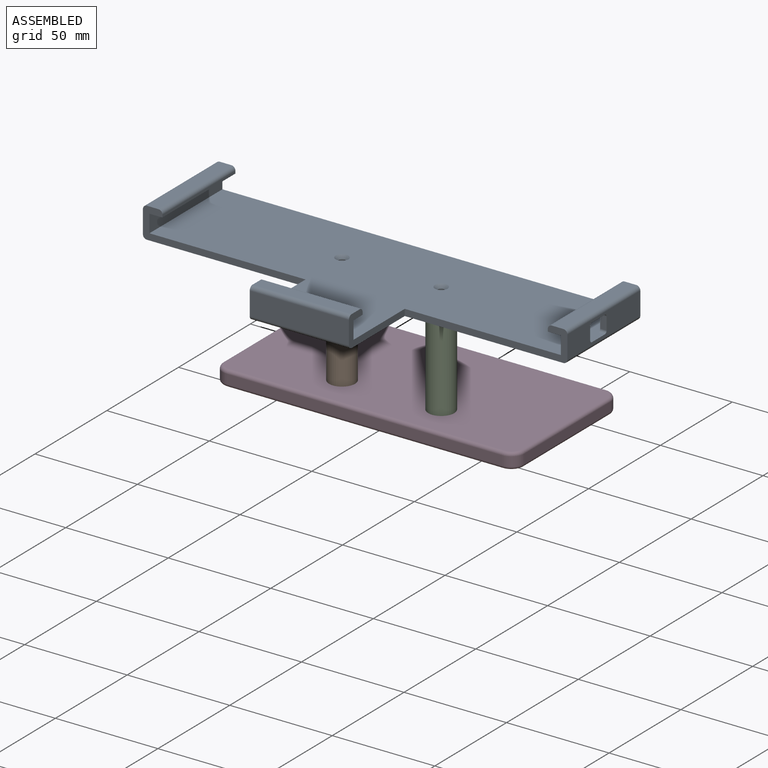
[diagram: assembled view]
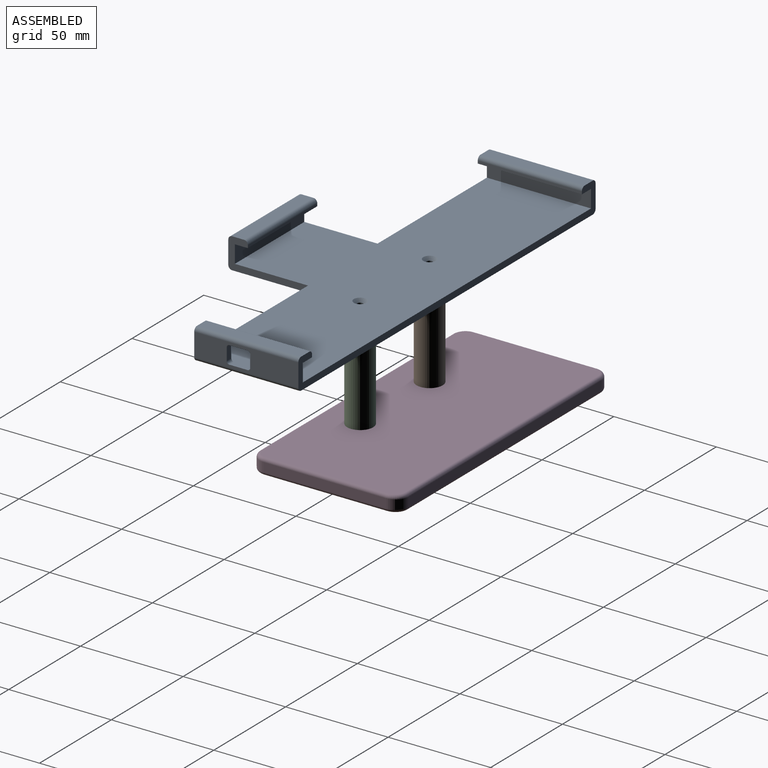
[diagram: assembled view, second angle]
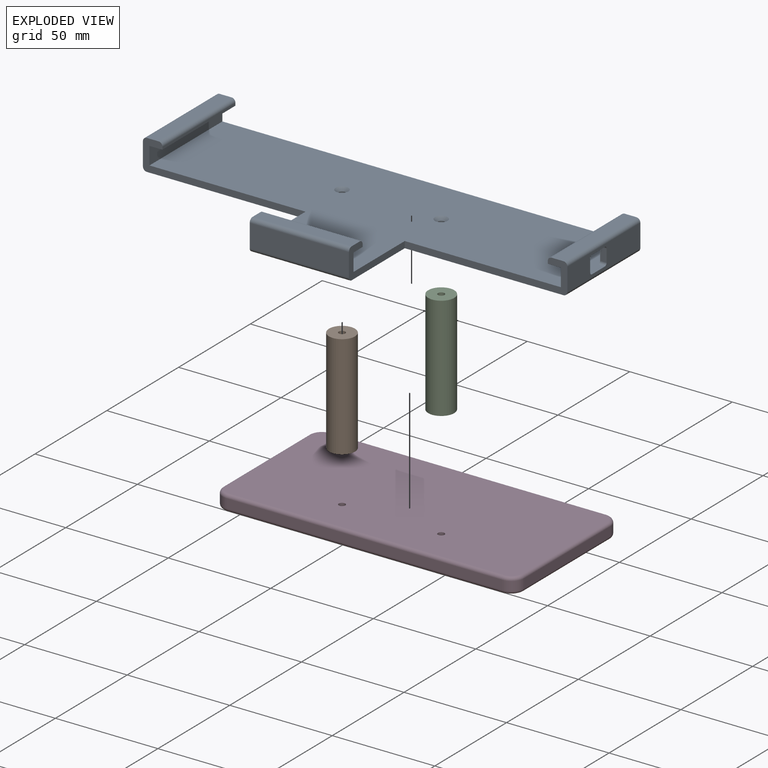
[diagram: exploded view]
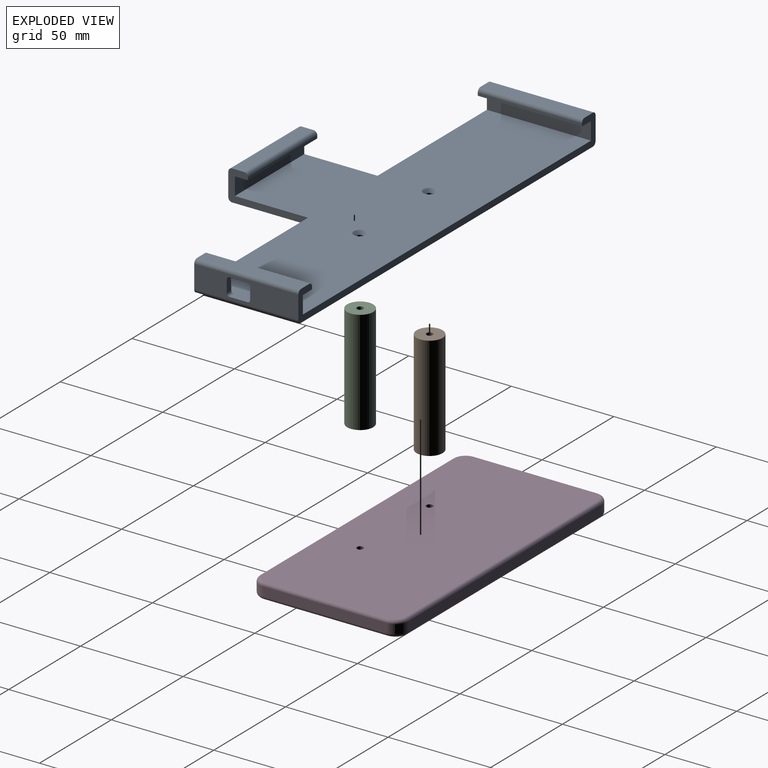
[diagram: exploded view, second angle]
ASSEMBLY  parts=4 mates=3
PART A: 42 faces, bbox 207x89.7x15 mm
  f0: plane 24.77x8.64mm, normal (-1,0,0), area 203.6mm2, adj f6,f9,f26,f36,f38,f41
  f1: plane 50.8x11.18mm, normal (1,0,0), area 470.4mm2, adj f5,f6,f9,f26,f27,f28,f36,f37
  f2: plane 79.31x14.99mm, normal (0,-1,0), area 307.1mm2, adj f3,f9,f10,f18,f19,f20,f21,f22
  f3: plane 38.9x14.99mm, normal (-1,0,0), area 178.8mm2, adj f2,f9,f10,f13,f14,f15,f16,f17
  f4: plane 38.9x14.99mm, normal (1,0,0), area 178.8mm2, adj f5,f9,f10,f13,f14,f15,f16,f17
  f5: plane 79.31x14.99mm, normal (0,-1,0), area 307.1mm2, adj f1,f4,f9,f10,f23,f24,f25,f26
  f6: plane 207.01x14.99mm, normal (0,1,0), area 767.9mm2, adj f0,f1,f9,f10,f18,f19,f20,f21
  f7: cylinder r=1.59mm len=3.18mm, axis (0,0,-1), area 16.5mm2, adj f10,f12
  f8: cylinder r=1.59mm len=3.18mm, axis (0,0,-1), area 16.5mm2, adj f10,f11
  f9: plane 203.84x86.53mm, normal (0,0,1), area 11889.6mm2, adj f0,f1,f2,f3,f4,f5,f6,f11
  f10: plane 203.2x87.8mm, normal (0,0,-1), area 12096.8mm2, adj f2,f3,f4,f5,f6,f7,f8,f27
  f11: cone r=1.59mm half-angle=45deg, axis (0,0,1), area 31.8mm2, adj f8,f9
  f12: cone r=1.59mm half-angle=45deg, axis (0,0,1), area 31.8mm2, adj f7,f9
  f13: plane 48.39x8.64mm, normal (0,1,0), area 417.9mm2, adj f3,f4,f9,f14
  f14: plane 48.39x6.35mm, normal (0,0,-1), area 307.3mm2, adj f3,f4,f13,f15
  f15: plane 48.39x1.27mm, normal (0,1,0), area 61.5mm2, adj f3,f4,f14,f33
  f16: plane 48.39x5.72mm, normal (0,0,1), area 276.5mm2, adj f3,f4,f33,f34
  f17: plane 48.39x11.18mm, normal (0,-1,0), area 540.8mm2, adj f3,f4,f34,f35
  f18: plane 50.8x8.64mm, normal (1,0,0), area 438.7mm2, adj f2,f6,f9,f19
  f19: plane 50.8x6.35mm, normal (0,0,-1), area 322.6mm2, adj f2,f6,f18,f20
  f20: plane 50.8x1.27mm, normal (1,0,0), area 64.5mm2, adj f2,f6,f19,f30
  f21: plane 50.8x5.72mm, normal (0,0,1), area 290.3mm2, adj f2,f6,f30,f31
  f22: plane 50.8x11.18mm, normal (-1,0,0), area 567.7mm2, adj f2,f6,f31,f32
  f23: plane 17.15x8.64mm, normal (-1,0,0), area 137.8mm2, adj f5,f9,f26,f37,f39,f40
  f24: plane 50.8x5.72mm, normal (0,0,1), area 290.3mm2, adj f5,f6,f28,f29
  f25: plane 50.8x1.27mm, normal (-1,0,0), area 64.5mm2, adj f5,f6,f26,f29
  f26: plane 50.8x9.53mm, normal (0,0,-1), area 350.8mm2, adj f0,f1,f5,f6,f23,f25,f38,f39
  f27: cylinder r=1.91mm len=50.8mm, axis (0,1,0), area 152mm2, adj f1,f5,f6,f10
  f28: cylinder r=1.91mm len=50.8mm, axis (0,-1,0), area 152mm2, adj f1,f5,f6,f24
  f29: cylinder r=1.91mm len=50.8mm, axis (0,-1,0), area 152mm2, adj f5,f6,f24,f25
  f30: cylinder r=1.91mm len=50.8mm, axis (0,-1,0), area 152mm2, adj f2,f6,f20,f21
  f31: cylinder r=1.91mm len=50.8mm, axis (0,-1,0), area 152mm2, adj f2,f6,f21,f22
  f32: cylinder r=1.91mm len=50.8mm, axis (0,-1,0), area 152mm2, adj f2,f6,f10,f22
  f33: cylinder r=1.91mm len=48.39mm, axis (1,0,0), area 144.8mm2, adj f3,f4,f15,f16
  f34: cylinder r=1.91mm len=48.39mm, axis (1,0,0), area 144.8mm2, adj f3,f4,f16,f17
  f35: cylinder r=1.91mm len=48.39mm, axis (1,0,0), area 144.8mm2, adj f3,f4,f10,f17
  f36: plane 6.1x3.18mm, normal (0,-1,0), area 19.4mm2, adj f0,f1,f38,f41
  f37: plane 6.1x3.18mm, normal (0,1,0), area 19.4mm2, adj f1,f23,f39,f40
  f38: cylinder r=1.27mm len=3.18mm, axis (-1,0,0), area 6.3mm2, adj f0,f1,f26,f36
  f39: cylinder r=1.27mm len=3.18mm, axis (1,0,0), area 6.3mm2, adj f1,f23,f26,f37
  f40: cylinder r=1.27mm len=3.18mm, axis (1,0,0), area 6.3mm2, adj f1,f9,f23,f37
  f41: cylinder r=1.27mm len=3.18mm, axis (-1,0,0), area 6.3mm2, adj f0,f1,f9,f36
PART B: 4 faces, bbox 12.7x12.7x50.8 mm
  f0: cylinder r=1.59mm len=50.8mm, axis (0,0,-1), area 506.7mm2, adj f2,f3
  f1: cylinder r=6.35mm len=50.8mm, axis (0,0,-1), area 2026.8mm2, adj f2,f3
  f2: plane 12.7x12.7mm, normal (0,0,1), area 118.8mm2, adj f0,f1
  f3: plane 12.7x12.7mm, normal (0,0,-1), area 118.8mm2, adj f0,f1
PART C: 4 faces, bbox 12.7x12.7x50.8 mm
  f0: cylinder r=1.59mm len=50.8mm, axis (0,0,-1), area 506.7mm2, adj f2,f3
  f1: cylinder r=6.35mm len=50.8mm, axis (0,0,-1), area 2026.8mm2, adj f2,f3
  f2: plane 12.7x12.7mm, normal (0,0,1), area 118.8mm2, adj f0,f1
  f3: plane 12.7x12.7mm, normal (0,0,-1), area 118.8mm2, adj f0,f1
PART D: 30 faces, bbox 148.1x73.7x7.6 mm
  f0: plane 134.37x4.45mm, normal (0,1,0), area 597.3mm2, adj f6,f9,f17,f25
  f1: plane 59.94x4.45mm, normal (-1,0,0), area 266.5mm2, adj f6,f7,f13,f21
  f2: plane 134.37x4.45mm, normal (0,-1,0), area 597.3mm2, adj f7,f8,f10,f18
  f3: plane 59.94x4.45mm, normal (1,0,0), area 266.5mm2, adj f8,f9,f14,f22
  f4: plane 143.89x69.47mm, normal (0,0,1), area 9960.7mm2, adj f10,f11,f12,f13,f14,f15,f16,f17
  f5: plane 143.89x69.47mm, normal (0,0,-1), area 9915.7mm2, adj f18,f19,f20,f21,f22,f23,f24,f25
  f6: cylinder r=6.35mm len=6.35mm, axis (0,0,1), area 44.3mm2, adj f0,f1,f15,f23
  f7: cylinder r=6.35mm len=6.35mm, axis (0,0,-1), area 44.3mm2, adj f1,f2,f11,f19
  f8: cylinder r=6.35mm len=6.35mm, axis (0,0,1), area 44.3mm2, adj f2,f3,f12,f20
  f9: cylinder r=6.35mm len=6.35mm, axis (0,0,-1), area 44.3mm2, adj f0,f3,f16,f24
  f10: cylinder r=1.59mm len=134.37mm, axis (-1,0,0), area 335.1mm2, adj f2,f4,f11,f12
  f11: torus R=4.76mm, axis (0,0,1), area 22.6mm2, adj f4,f7,f10,f13
  f12: torus R=4.76mm, axis (0,0,1), area 22.6mm2, adj f4,f8,f10,f14
  f13: cylinder r=1.59mm len=59.94mm, axis (0,1,0), area 149.5mm2, adj f1,f4,f11,f15
  f14: cylinder r=1.59mm len=59.94mm, axis (0,-1,0), area 149.5mm2, adj f3,f4,f12,f16
  f15: torus R=4.76mm, axis (0,0,1), area 22.6mm2, adj f4,f6,f13,f17
  f16: torus R=4.76mm, axis (0,0,1), area 22.6mm2, adj f4,f9,f14,f17
  f17: cylinder r=1.59mm len=134.37mm, axis (1,0,0), area 335.1mm2, adj f0,f4,f15,f16
  f18: cylinder r=1.59mm len=134.37mm, axis (1,0,0), area 335.1mm2, adj f2,f5,f19,f20
  f19: torus R=4.76mm, axis (0,0,1), area 22.6mm2, adj f5,f7,f18,f21
  f20: torus R=4.76mm, axis (0,0,1), area 22.6mm2, adj f5,f8,f18,f22
  f21: cylinder r=1.59mm len=59.94mm, axis (0,-1,0), area 149.5mm2, adj f1,f5,f19,f23
  f22: cylinder r=1.59mm len=59.94mm, axis (0,1,0), area 149.5mm2, adj f3,f5,f20,f24
  f23: torus R=4.76mm, axis (0,0,1), area 22.6mm2, adj f5,f6,f21,f25
  f24: torus R=4.76mm, axis (0,0,1), area 22.6mm2, adj f5,f9,f22,f25
  f25: cylinder r=1.59mm len=134.37mm, axis (-1,0,0), area 335.1mm2, adj f0,f5,f23,f24
  f26: cylinder r=1.59mm len=6.1mm, axis (0,0,1), area 60.8mm2, adj f4,f29
  f27: cylinder r=1.59mm len=6.1mm, axis (0,0,1), area 60.8mm2, adj f4,f28
  f28: cone r=3.11mm half-angle=45deg, axis (0,0,-1), area 31.8mm2, adj f5,f27
  f29: cone r=3.11mm half-angle=45deg, axis (0,0,-1), area 31.8mm2, adj f5,f26
PLACE A t=(-9.64,-6.09,-4.6)mm
PLACE B rot(axis=(1,0,0),180deg) t=(-58.02,-40.81,61.44)mm
PLACE C t=(38.75,-6.09,-4.6)mm
PLACE D t=(-9.64,-6.09,-4.6)mm fixed
MATE fastened B.f0 <-> D.f26  axis (0,0,1) through (-33.83,-23.45,3.02)mm
MATE fastened D.f27 <-> C.f0  axis (0,0,1) through (14.56,-23.45,3.02)mm
MATE fastened B.f0 <-> A.f8  axis (0,0,1) through (-33.83,-23.45,53.82)mm
